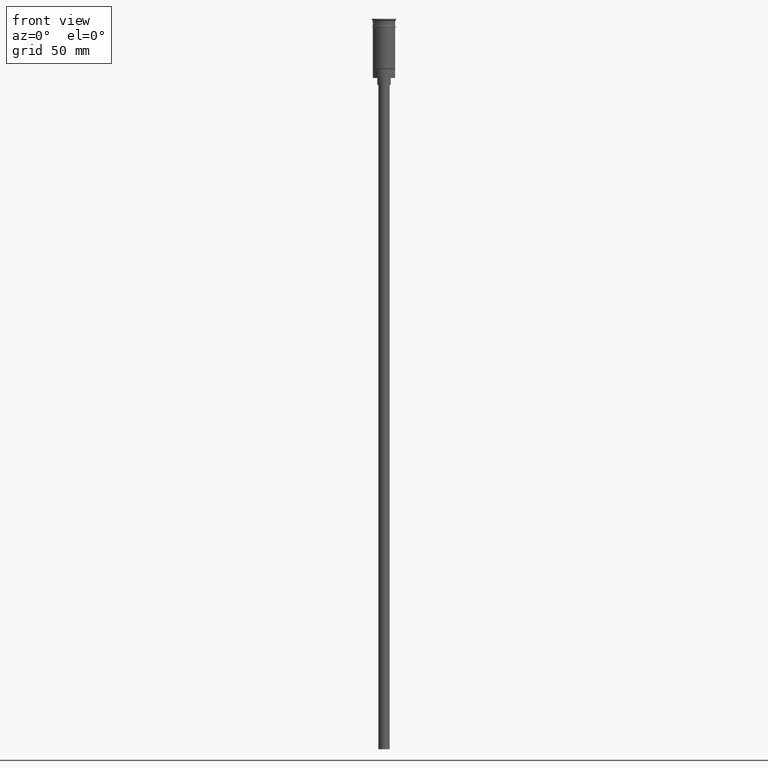
[diagram: clean part render]
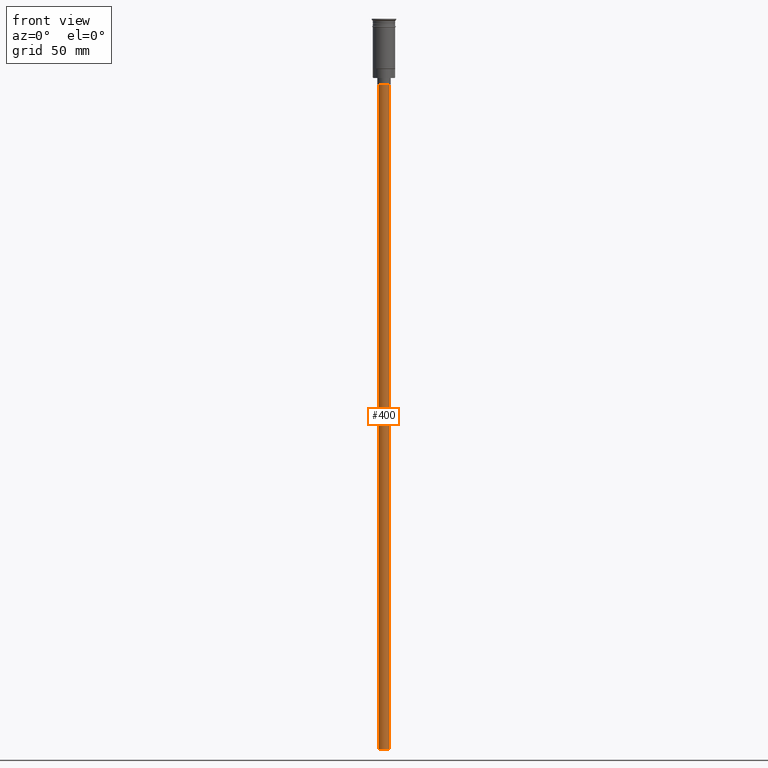
[diagram: same view with one face highlighted and labeled with its STEP entity id]
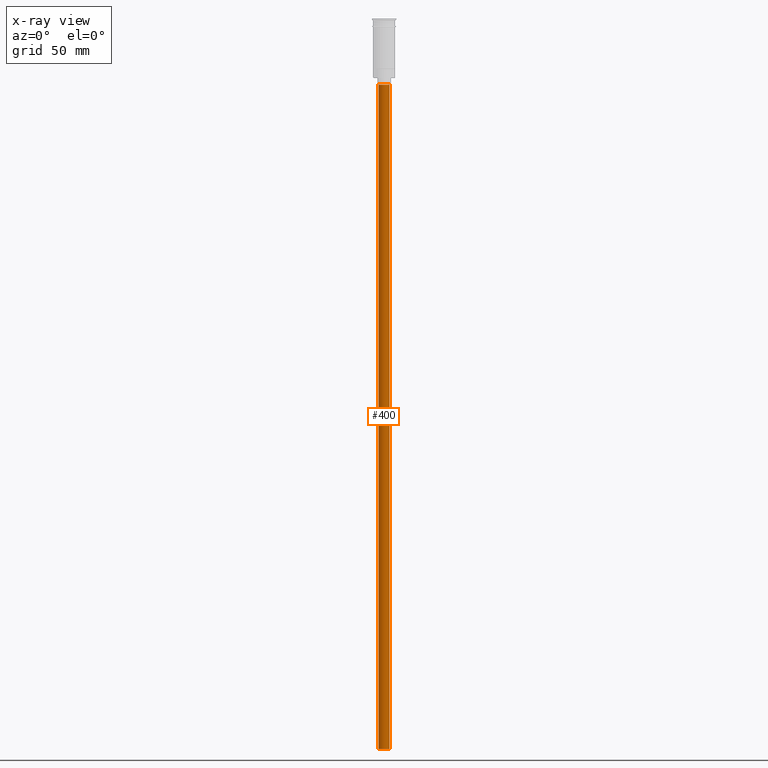
[diagram: x-ray of the same camera — body ghosted, the highlighted face saturated]
A machine part, front view. The second image highlights one B-rep face of the part: STEP entity #400.
The next image is the same camera in x-ray: the body ghosted, the highlighted face saturated — about 0% of this face is hidden behind the body in this view.
In plain terms, the highlighted cylindrical surface (edge-blend (fillet) strip) has radius 2.5 mm, axis along (-0, -0, 1).
Its self-contained STEP definition (entity closure, byte-faithful):
#1 = ORIENTED_EDGE ( 'NONE', *, *, #878, .F. ) ;
#8 = AXIS2_PLACEMENT_3D ( 'NONE', #1129, #889, #522 ) ;
#72 = DIRECTION ( 'NONE',  ( 1.000000000000000000, 0.000000000000000000, 0.000000000000000000 ) ) ;
#130 = ORIENTED_EDGE ( 'NONE', *, *, #493, .T. ) ;
#149 = VERTEX_POINT ( 'NONE', #279 ) ;
#250 = CARTESIAN_POINT ( 'NONE',  ( 0.000000000000000000, 0.000000000000000000, -29.50000000000000000 ) ) ;
#279 = CARTESIAN_POINT ( 'NONE',  ( 2.500000000000000000, 0.000000000000000000, -326.5000000000000000 ) ) ;
#320 = FACE_OUTER_BOUND ( 'NONE', #1272, .T. ) ;
#381 = CARTESIAN_POINT ( 'NONE',  ( -2.500000000000000000, 3.061616997868383141E-16, -326.5000000000000000 ) ) ;
#400 = ADVANCED_FACE ( 'NONE', ( #320 ), #1446, .T. ) ;
#448 = VECTOR ( 'NONE', #1120, 1000.000000000000000 ) ;
#493 = EDGE_CURVE ( 'NONE', #149, #901, #632, .T. ) ;
#494 = EDGE_CURVE ( 'NONE', #901, #1572, #1462, .T. ) ;
#509 = DIRECTION ( 'NONE',  ( 0.000000000000000000, 0.000000000000000000, -1.000000000000000000 ) ) ;
#522 = DIRECTION ( 'NONE',  ( -1.000000000000000000, 0.000000000000000000, 0.000000000000000000 ) ) ;
#578 = CARTESIAN_POINT ( 'NONE',  ( 0.000000000000000000, 0.000000000000000000, -326.5000000000000000 ) ) ;
#632 = LINE ( 'NONE', #1114, #448 ) ;
#659 = CARTESIAN_POINT ( 'NONE',  ( -2.500000000000000000, 3.061616997868383141E-16, -29.50000000000000000 ) ) ;
#763 = ORIENTED_EDGE ( 'NONE', *, *, #1549, .F. ) ;
#878 = EDGE_CURVE ( 'NONE', #1061, #1572, #1351, .T. ) ;
#889 = DIRECTION ( 'NONE',  ( 0.000000000000000000, 0.000000000000000000, -1.000000000000000000 ) ) ;
#901 = VERTEX_POINT ( 'NONE', #1596 ) ;
#980 = VECTOR ( 'NONE', #1471, 1000.000000000000000 ) ;
#995 = DIRECTION ( 'NONE',  ( -1.000000000000000000, 0.000000000000000000, 0.000000000000000000 ) ) ;
#1061 = VERTEX_POINT ( 'NONE', #381 ) ;
#1069 = ORIENTED_EDGE ( 'NONE', *, *, #494, .T. ) ;
#1100 = CARTESIAN_POINT ( 'NONE',  ( -2.500000000000000000, 3.061616997868383141E-16, -326.5000000000000000 ) ) ;
#1114 = CARTESIAN_POINT ( 'NONE',  ( 2.500000000000000000, 0.000000000000000000, -326.5000000000000000 ) ) ;
#1120 = DIRECTION ( 'NONE',  ( -0.000000000000000000, -0.000000000000000000, 1.000000000000000000 ) ) ;
#1129 = CARTESIAN_POINT ( 'NONE',  ( 0.000000000000000000, 0.000000000000000000, -326.5000000000000000 ) ) ;
#1242 = AXIS2_PLACEMENT_3D ( 'NONE', #578, #1304, #72 ) ;
#1272 = EDGE_LOOP ( 'NONE', ( #1, #763, #130, #1069 ) ) ;
#1304 = DIRECTION ( 'NONE',  ( -0.000000000000000000, -0.000000000000000000, 1.000000000000000000 ) ) ;
#1349 = CIRCLE ( 'NONE', #8, 2.500000000000000000 ) ;
#1351 = LINE ( 'NONE', #1100, #980 ) ;
#1446 = CYLINDRICAL_SURFACE ( 'NONE', #1242, 2.500000000000000000 ) ;
#1462 = CIRCLE ( 'NONE', #1560, 2.500000000000000000 ) ;
#1471 = DIRECTION ( 'NONE',  ( -0.000000000000000000, -0.000000000000000000, 1.000000000000000000 ) ) ;
#1549 = EDGE_CURVE ( 'NONE', #149, #1061, #1349, .T. ) ;
#1560 = AXIS2_PLACEMENT_3D ( 'NONE', #250, #509, #995 ) ;
#1572 = VERTEX_POINT ( 'NONE', #659 ) ;
#1596 = CARTESIAN_POINT ( 'NONE',  ( 2.500000000000000000, 0.000000000000000000, -29.50000000000000000 ) ) ;